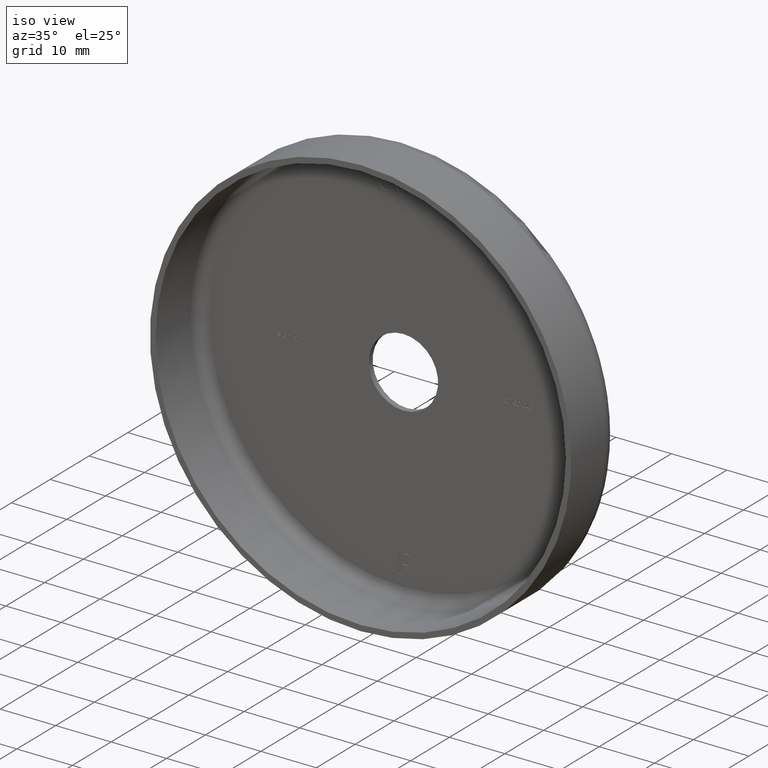
[diagram: clean part render]
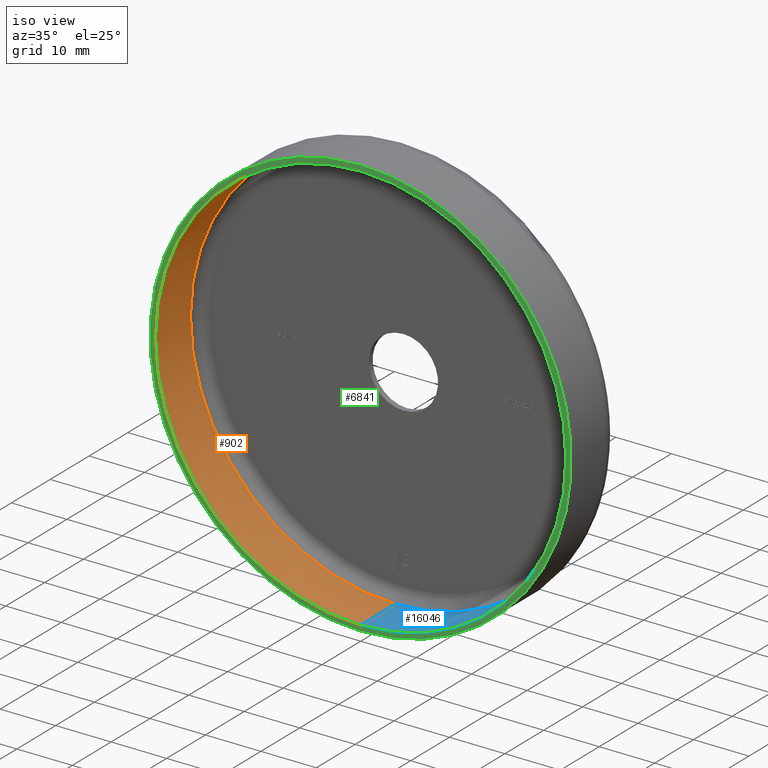
[diagram: same view with three faces highlighted in distinct colors, each labeled with its STEP entity id]
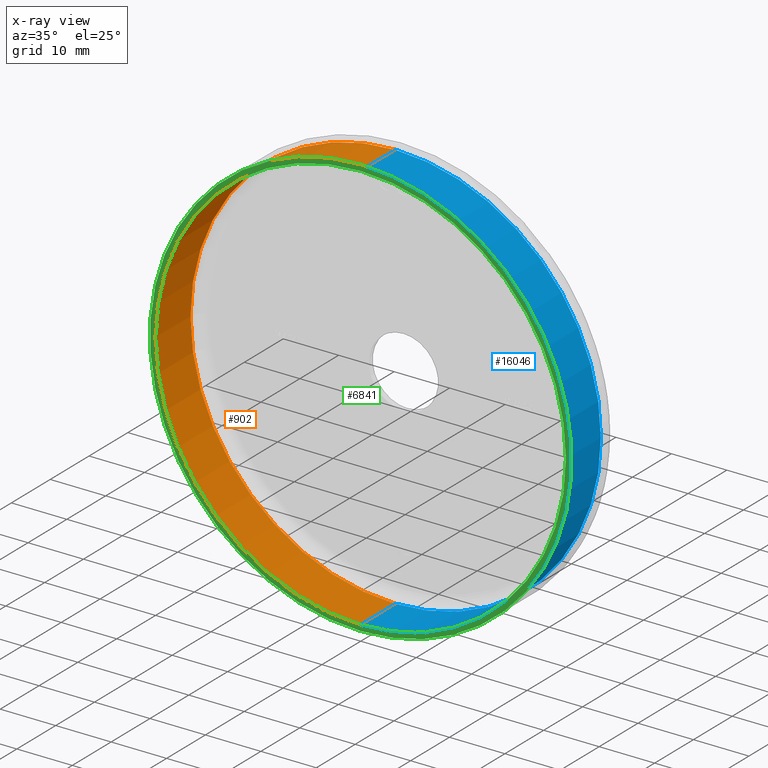
[diagram: x-ray of the same camera — body ghosted, the three highlighted faces saturated]
A machine part, iso view with three faces highlighted in distinct colors.
The next image is the same camera in x-ray (body ghosted, the three faces saturated) — at least one of them is partly hidden behind the body in this view.
Their STEP definitions:

[orange] entity #902 — the highlighted cylindrical surface (partial cylindrical patch) has radius 37 mm, axis along (-0, -1, -0).
#102 = EDGE_CURVE ( 'NONE', #2456, #14752, #8927, .T. ) ;
#696 = DIRECTION ( 'NONE',  ( -0.000000000000000000, -1.000000000000000000, -0.000000000000000000 ) ) ;
#902 = ADVANCED_FACE ( 'NONE', ( #10457 ), #2482, .F. ) ;
#916 = CIRCLE ( 'NONE', #11800, 37.00000000000000711 ) ;
#1053 = DIRECTION ( 'NONE',  ( -0.000000000000000000, -1.000000000000000000, -0.000000000000000000 ) ) ;
#1957 = EDGE_CURVE ( 'NONE', #9533, #5240, #5577, .T. ) ;
#2456 = VERTEX_POINT ( 'NONE', #9976 ) ;
#2470 = CARTESIAN_POINT ( 'NONE',  ( 0.000000000000000000, 9.000000000000001776, 0.000000000000000000 ) ) ;
#2482 = CYLINDRICAL_SURFACE ( 'NONE', #8319, 37.00000000000000711 ) ;
#4058 = ORIENTED_EDGE ( 'NONE', *, *, #102, .F. ) ;
#5240 = VERTEX_POINT ( 'NONE', #11105 ) ;
#5577 = LINE ( 'NONE', #8359, #11395 ) ;
#5608 = VECTOR ( 'NONE', #5859, 1000.000000000000000 ) ;
#5859 = DIRECTION ( 'NONE',  ( -0.000000000000000000, -1.000000000000000000, -0.000000000000000000 ) ) ;
#5937 = DIRECTION ( 'NONE',  ( 0.000000000000000000, 0.000000000000000000, -1.000000000000000000 ) ) ;
#7469 = CARTESIAN_POINT ( 'NONE',  ( 0.000000000000000000, -1.224646799147353207E-16, -37.00000000000000711 ) ) ;
#7857 = AXIS2_PLACEMENT_3D ( 'NONE', #8138, #696, #9404 ) ;
#7982 = ORIENTED_EDGE ( 'NONE', *, *, #14664, .T. ) ;
#8138 = CARTESIAN_POINT ( 'NONE',  ( 0.000000000000000000, -1.224646799147353207E-16, 0.000000000000000000 ) ) ;
#8319 = AXIS2_PLACEMENT_3D ( 'NONE', #9807, #1053, #5937 ) ;
#8359 = CARTESIAN_POINT ( 'NONE',  ( 4.531193156845207581E-15, 0.000000000000000000, 37.00000000000000711 ) ) ;
#8927 = LINE ( 'NONE', #13049, #5608 ) ;
#9404 = DIRECTION ( 'NONE',  ( 0.000000000000000000, 0.000000000000000000, -1.000000000000000000 ) ) ;
#9533 = VERTEX_POINT ( 'NONE', #13823 ) ;
#9807 = CARTESIAN_POINT ( 'NONE',  ( 0.000000000000000000, 0.000000000000000000, 0.000000000000000000 ) ) ;
#9976 = CARTESIAN_POINT ( 'NONE',  ( 0.000000000000000000, 9.000000000000001776, -37.00000000000000711 ) ) ;
#10123 = DIRECTION ( 'NONE',  ( -0.000000000000000000, -1.000000000000000000, -0.000000000000000000 ) ) ;
#10457 = FACE_OUTER_BOUND ( 'NONE', #15683, .T. ) ;
#11105 = CARTESIAN_POINT ( 'NONE',  ( 4.531193156845207581E-15, -1.224646799147353207E-16, 37.00000000000000711 ) ) ;
#11318 = DIRECTION ( 'NONE',  ( 0.000000000000000000, 0.000000000000000000, -1.000000000000000000 ) ) ;
#11372 = ORIENTED_EDGE ( 'NONE', *, *, #1957, .T. ) ;
#11395 = VECTOR ( 'NONE', #15860, 1000.000000000000000 ) ;
#11800 = AXIS2_PLACEMENT_3D ( 'NONE', #2470, #10123, #11318 ) ;
#13049 = CARTESIAN_POINT ( 'NONE',  ( 0.000000000000000000, 0.000000000000000000, -37.00000000000000711 ) ) ;
#13520 = CIRCLE ( 'NONE', #7857, 37.00000000000000711 ) ;
#13823 = CARTESIAN_POINT ( 'NONE',  ( 4.531193156845207581E-15, 9.000000000000001776, 37.00000000000000711 ) ) ;
#14664 = EDGE_CURVE ( 'NONE', #5240, #14752, #13520, .T. ) ;
#14752 = VERTEX_POINT ( 'NONE', #7469 ) ;
#15225 = EDGE_CURVE ( 'NONE', #9533, #2456, #916, .T. ) ;
#15683 = EDGE_LOOP ( 'NONE', ( #15853, #11372, #7982, #4058 ) ) ;
#15853 = ORIENTED_EDGE ( 'NONE', *, *, #15225, .F. ) ;
#15860 = DIRECTION ( 'NONE',  ( -0.000000000000000000, -1.000000000000000000, -0.000000000000000000 ) ) ;

[blue] entity #16046 — the highlighted cylindrical surface (partial cylindrical patch) has radius 37 mm, axis along (-0, -1, -0).
#102 = EDGE_CURVE ( 'NONE', #2456, #14752, #8927, .T. ) ;
#1957 = EDGE_CURVE ( 'NONE', #9533, #5240, #5577, .T. ) ;
#2120 = ORIENTED_EDGE ( 'NONE', *, *, #2841, .F. ) ;
#2456 = VERTEX_POINT ( 'NONE', #9976 ) ;
#2841 = EDGE_CURVE ( 'NONE', #2456, #9533, #6517, .T. ) ;
#4428 = DIRECTION ( 'NONE',  ( -0.000000000000000000, -1.000000000000000000, -0.000000000000000000 ) ) ;
#4755 = AXIS2_PLACEMENT_3D ( 'NONE', #10243, #11696, #7951 ) ;
#4813 = FACE_OUTER_BOUND ( 'NONE', #13511, .T. ) ;
#5096 = ORIENTED_EDGE ( 'NONE', *, *, #102, .T. ) ;
#5240 = VERTEX_POINT ( 'NONE', #11105 ) ;
#5577 = LINE ( 'NONE', #8359, #11395 ) ;
#5608 = VECTOR ( 'NONE', #5859, 1000.000000000000000 ) ;
#5859 = DIRECTION ( 'NONE',  ( -0.000000000000000000, -1.000000000000000000, -0.000000000000000000 ) ) ;
#6449 = CARTESIAN_POINT ( 'NONE',  ( 0.000000000000000000, 0.000000000000000000, 0.000000000000000000 ) ) ;
#6517 = CIRCLE ( 'NONE', #7998, 37.00000000000000711 ) ;
#6705 = AXIS2_PLACEMENT_3D ( 'NONE', #6449, #9181, #7856 ) ;
#7469 = CARTESIAN_POINT ( 'NONE',  ( 0.000000000000000000, -1.224646799147353207E-16, -37.00000000000000711 ) ) ;
#7691 = CYLINDRICAL_SURFACE ( 'NONE', #6705, 37.00000000000000711 ) ;
#7856 = DIRECTION ( 'NONE',  ( 0.000000000000000000, 0.000000000000000000, -1.000000000000000000 ) ) ;
#7951 = DIRECTION ( 'NONE',  ( 0.000000000000000000, 0.000000000000000000, -1.000000000000000000 ) ) ;
#7998 = AXIS2_PLACEMENT_3D ( 'NONE', #15615, #4428, #11954 ) ;
#8359 = CARTESIAN_POINT ( 'NONE',  ( 4.531193156845207581E-15, 0.000000000000000000, 37.00000000000000711 ) ) ;
#8927 = LINE ( 'NONE', #13049, #5608 ) ;
#9181 = DIRECTION ( 'NONE',  ( -0.000000000000000000, -1.000000000000000000, -0.000000000000000000 ) ) ;
#9533 = VERTEX_POINT ( 'NONE', #13823 ) ;
#9764 = ORIENTED_EDGE ( 'NONE', *, *, #11705, .T. ) ;
#9976 = CARTESIAN_POINT ( 'NONE',  ( 0.000000000000000000, 9.000000000000001776, -37.00000000000000711 ) ) ;
#10243 = CARTESIAN_POINT ( 'NONE',  ( 0.000000000000000000, -1.224646799147353207E-16, 0.000000000000000000 ) ) ;
#10321 = ORIENTED_EDGE ( 'NONE', *, *, #1957, .F. ) ;
#11105 = CARTESIAN_POINT ( 'NONE',  ( 4.531193156845207581E-15, -1.224646799147353207E-16, 37.00000000000000711 ) ) ;
#11395 = VECTOR ( 'NONE', #15860, 1000.000000000000000 ) ;
#11696 = DIRECTION ( 'NONE',  ( -0.000000000000000000, -1.000000000000000000, -0.000000000000000000 ) ) ;
#11705 = EDGE_CURVE ( 'NONE', #14752, #5240, #12605, .T. ) ;
#11954 = DIRECTION ( 'NONE',  ( 0.000000000000000000, 0.000000000000000000, -1.000000000000000000 ) ) ;
#12605 = CIRCLE ( 'NONE', #4755, 37.00000000000000711 ) ;
#13049 = CARTESIAN_POINT ( 'NONE',  ( 0.000000000000000000, 0.000000000000000000, -37.00000000000000711 ) ) ;
#13511 = EDGE_LOOP ( 'NONE', ( #10321, #2120, #5096, #9764 ) ) ;
#13823 = CARTESIAN_POINT ( 'NONE',  ( 4.531193156845207581E-15, 9.000000000000001776, 37.00000000000000711 ) ) ;
#14752 = VERTEX_POINT ( 'NONE', #7469 ) ;
#15615 = CARTESIAN_POINT ( 'NONE',  ( 0.000000000000000000, 9.000000000000001776, 0.000000000000000000 ) ) ;
#15860 = DIRECTION ( 'NONE',  ( -0.000000000000000000, -1.000000000000000000, -0.000000000000000000 ) ) ;
#16046 = ADVANCED_FACE ( 'NONE', ( #4813 ), #7691, .F. ) ;

[green] entity #6841 — the highlighted planar face has unit normal (0, -1, -0).
#696 = DIRECTION ( 'NONE',  ( -0.000000000000000000, -1.000000000000000000, -0.000000000000000000 ) ) ;
#1112 = EDGE_CURVE ( 'NONE', #3849, #16010, #1683, .T. ) ;
#1644 = ORIENTED_EDGE ( 'NONE', *, *, #12693, .T. ) ;
#1680 = ORIENTED_EDGE ( 'NONE', *, *, #14664, .F. ) ;
#1683 = CIRCLE ( 'NONE', #13796, 38.00000000000000711 ) ;
#1792 = FACE_OUTER_BOUND ( 'NONE', #13938, .T. ) ;
#3479 = CARTESIAN_POINT ( 'NONE',  ( 37.00000000000000711, -6.123233995736766036E-17, 0.000000000000000000 ) ) ;
#3849 = VERTEX_POINT ( 'NONE', #9206 ) ;
#4755 = AXIS2_PLACEMENT_3D ( 'NONE', #10243, #11696, #7951 ) ;
#5240 = VERTEX_POINT ( 'NONE', #11105 ) ;
#5649 = ORIENTED_EDGE ( 'NONE', *, *, #1112, .T. ) ;
#6841 = ADVANCED_FACE ( 'NONE', ( #1792, #9004 ), #12043, .T. ) ;
#7469 = CARTESIAN_POINT ( 'NONE',  ( 0.000000000000000000, -1.224646799147353207E-16, -37.00000000000000711 ) ) ;
#7810 = EDGE_LOOP ( 'NONE', ( #10434, #1680 ) ) ;
#7857 = AXIS2_PLACEMENT_3D ( 'NONE', #8138, #696, #9404 ) ;
#7951 = DIRECTION ( 'NONE',  ( 0.000000000000000000, 0.000000000000000000, -1.000000000000000000 ) ) ;
#8138 = CARTESIAN_POINT ( 'NONE',  ( 0.000000000000000000, -1.224646799147353207E-16, 0.000000000000000000 ) ) ;
#8857 = AXIS2_PLACEMENT_3D ( 'NONE', #3479, #14470, #15709 ) ;
#9004 = FACE_BOUND ( 'NONE', #7810, .T. ) ;
#9206 = CARTESIAN_POINT ( 'NONE',  ( 4.653657836759942730E-15, 0.000000000000000000, 38.00000000000000711 ) ) ;
#9404 = DIRECTION ( 'NONE',  ( 0.000000000000000000, 0.000000000000000000, -1.000000000000000000 ) ) ;
#9789 = CARTESIAN_POINT ( 'NONE',  ( 0.000000000000000000, 0.000000000000000000, -38.00000000000000711 ) ) ;
#10243 = CARTESIAN_POINT ( 'NONE',  ( 0.000000000000000000, -1.224646799147353207E-16, 0.000000000000000000 ) ) ;
#10434 = ORIENTED_EDGE ( 'NONE', *, *, #11705, .F. ) ;
#11096 = CARTESIAN_POINT ( 'NONE',  ( 0.000000000000000000, 0.000000000000000000, 0.000000000000000000 ) ) ;
#11105 = CARTESIAN_POINT ( 'NONE',  ( 4.531193156845207581E-15, -1.224646799147353207E-16, 37.00000000000000711 ) ) ;
#11678 = DIRECTION ( 'NONE',  ( 0.000000000000000000, 0.000000000000000000, -1.000000000000000000 ) ) ;
#11696 = DIRECTION ( 'NONE',  ( -0.000000000000000000, -1.000000000000000000, -0.000000000000000000 ) ) ;
#11705 = EDGE_CURVE ( 'NONE', #14752, #5240, #12605, .T. ) ;
#12015 = CIRCLE ( 'NONE', #12716, 38.00000000000000711 ) ;
#12043 = PLANE ( 'NONE',  #8857 ) ;
#12605 = CIRCLE ( 'NONE', #4755, 37.00000000000000711 ) ;
#12693 = EDGE_CURVE ( 'NONE', #16010, #3849, #12015, .T. ) ;
#12716 = AXIS2_PLACEMENT_3D ( 'NONE', #11096, #13559, #14912 ) ;
#12895 = DIRECTION ( 'NONE',  ( -0.000000000000000000, -1.000000000000000000, -0.000000000000000000 ) ) ;
#13520 = CIRCLE ( 'NONE', #7857, 37.00000000000000711 ) ;
#13559 = DIRECTION ( 'NONE',  ( -0.000000000000000000, -1.000000000000000000, -0.000000000000000000 ) ) ;
#13796 = AXIS2_PLACEMENT_3D ( 'NONE', #15445, #12895, #11678 ) ;
#13938 = EDGE_LOOP ( 'NONE', ( #1644, #5649 ) ) ;
#14470 = DIRECTION ( 'NONE',  ( 0.000000000000000000, -1.000000000000000000, -0.000000000000000000 ) ) ;
#14664 = EDGE_CURVE ( 'NONE', #5240, #14752, #13520, .T. ) ;
#14752 = VERTEX_POINT ( 'NONE', #7469 ) ;
#14912 = DIRECTION ( 'NONE',  ( 0.000000000000000000, 0.000000000000000000, -1.000000000000000000 ) ) ;
#15445 = CARTESIAN_POINT ( 'NONE',  ( 0.000000000000000000, 0.000000000000000000, 0.000000000000000000 ) ) ;
#15709 = DIRECTION ( 'NONE',  ( 0.000000000000000000, 0.000000000000000000, -1.000000000000000000 ) ) ;
#16010 = VERTEX_POINT ( 'NONE', #9789 ) ;